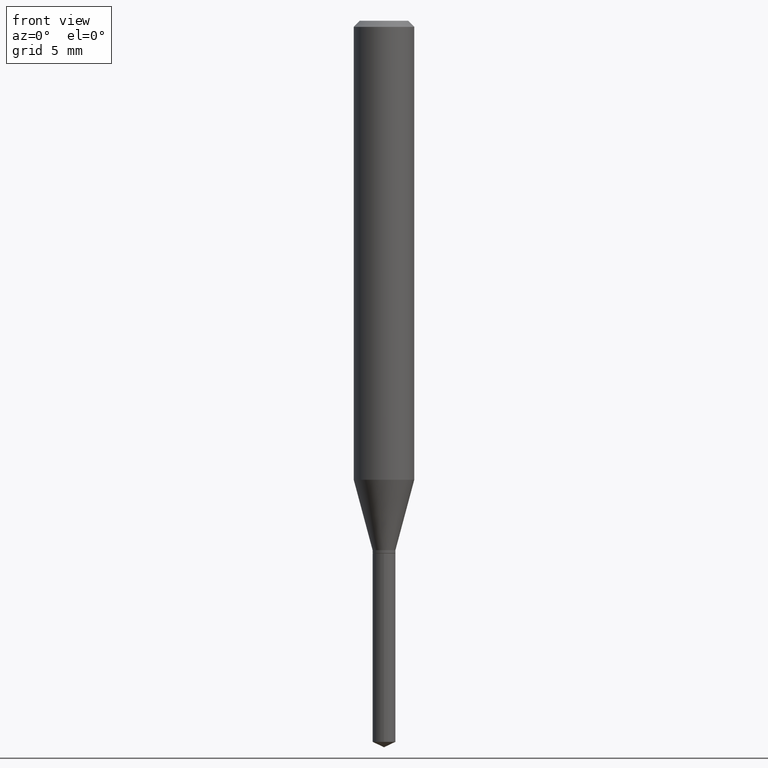
[diagram: clean part render]
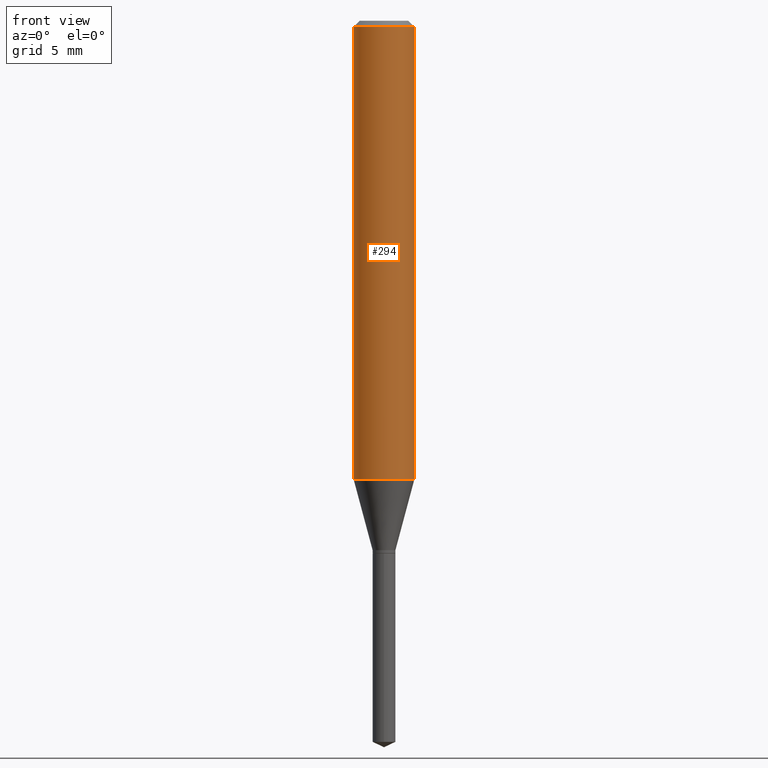
[diagram: same view with one face highlighted and labeled with its STEP entity id]
A machine part, front view. The second image highlights one B-rep face of the part: STEP entity #294.
In plain terms, the highlighted cylindrical surface (edge-blend (fillet) strip) has radius 1.5875 mm, axis along (-0, 0, 1).
Its self-contained STEP definition (entity closure, byte-faithful):
#22 = DIRECTION ( 'NONE',  ( -2.445468806185136597E-29, 3.491481338843145583E-15, 1.000000000000000000 ) ) ;
#25 = CARTESIAN_POINT ( 'NONE',  ( -0.06250000000000012490, -2.864868739687227081E-15, -0.9477232235855707065 ) ) ;
#33 = CARTESIAN_POINT ( 'NONE',  ( -0.06250000000000001388, -1.232211523286351422E-15, -0.01250000000000008916 ) ) ;
#54 = CYLINDRICAL_SURFACE ( 'NONE', #135, 0.06250000000000006939 ) ;
#62 = CARTESIAN_POINT ( 'NONE',  ( 0.000000000000000000, 0.000000000000000000, 0.000000000000000000 ) ) ;
#70 = DIRECTION ( 'NONE',  ( 1.000000000000000000, -6.982962677686265922E-15, 0.000000000000000000 ) ) ;
#71 = VECTOR ( 'NONE', #118, 39.37007874015748143 ) ;
#108 = VERTEX_POINT ( 'NONE', #244 ) ;
#118 = DIRECTION ( 'NONE',  ( -2.445468806185136877E-29, 3.491481338843145188E-15, 1.000000000000000000 ) ) ;
#121 = EDGE_CURVE ( 'NONE', #413, #339, #126, .T. ) ;
#126 = CIRCLE ( 'NONE', #385, 0.06250000000000012490 ) ;
#135 = AXIS2_PLACEMENT_3D ( 'NONE', #62, #22, #371 ) ;
#168 = EDGE_CURVE ( 'NONE', #339, #108, #315, .T. ) ;
#174 = DIRECTION ( 'NONE',  ( 1.000000000000000000, -6.982962677686264344E-15, 0.000000000000000000 ) ) ;
#188 = VECTOR ( 'NONE', #397, 39.37007874015748143 ) ;
#195 = EDGE_CURVE ( 'NONE', #413, #417, #323, .T. ) ;
#196 = ORIENTED_EDGE ( 'NONE', *, *, #445, .F. ) ;
#210 = FACE_OUTER_BOUND ( 'NONE', #247, .T. ) ;
#212 = CARTESIAN_POINT ( 'NONE',  ( 0.06250000000000012490, -3.745393116892682550E-15, -0.9477232235855707065 ) ) ;
#228 = ORIENTED_EDGE ( 'NONE', *, *, #121, .T. ) ;
#244 = CARTESIAN_POINT ( 'NONE',  ( 0.06250000000000001388, -4.800786840909313294E-16, -0.01250000000000008916 ) ) ;
#247 = EDGE_LOOP ( 'NONE', ( #253, #228, #438, #196 ) ) ;
#253 = ORIENTED_EDGE ( 'NONE', *, *, #195, .F. ) ;
#294 = ADVANCED_FACE ( 'NONE', ( #210 ), #54, .T. ) ;
#301 = CIRCLE ( 'NONE', #415, 0.06250000000000001388 ) ;
#315 = LINE ( 'NONE', #352, #188 ) ;
#323 = LINE ( 'NONE', #464, #71 ) ;
#339 = VERTEX_POINT ( 'NONE', #212 ) ;
#352 = CARTESIAN_POINT ( 'NONE',  ( 0.06250000000000006939, -4.364351673553921624E-16, 3.047610484872463374E-30 ) ) ;
#371 = DIRECTION ( 'NONE',  ( 1.000000000000000000, -6.982962677686266711E-15, 4.876176775795935793E-29 ) ) ;
#385 = AXIS2_PLACEMENT_3D ( 'NONE', #427, #431, #174 ) ;
#397 = DIRECTION ( 'NONE',  ( -2.445468806185136877E-29, 3.491481338843145188E-15, 1.000000000000000000 ) ) ;
#413 = VERTEX_POINT ( 'NONE', #25 ) ;
#415 = AXIS2_PLACEMENT_3D ( 'NONE', #450, #444, #70 ) ;
#417 = VERTEX_POINT ( 'NONE', #33 ) ;
#427 = CARTESIAN_POINT ( 'NONE',  ( 2.317627580175734983E-29, -3.308957949537290487E-15, -0.9477232235855707065 ) ) ;
#431 = DIRECTION ( 'NONE',  ( -2.445468806185136597E-29, 3.491481338843145583E-15, 1.000000000000000000 ) ) ;
#438 = ORIENTED_EDGE ( 'NONE', *, *, #168, .T. ) ;
#444 = DIRECTION ( 'NONE',  ( -2.445468806185136597E-29, 3.491481338843145583E-15, 1.000000000000000000 ) ) ;
#445 = EDGE_CURVE ( 'NONE', #417, #108, #301, .T. ) ;
#450 = CARTESIAN_POINT ( 'NONE',  ( 3.056836007731442729E-31, -4.364351673553962300E-17, -0.01250000000000008916 ) ) ;
#464 = CARTESIAN_POINT ( 'NONE',  ( -0.06250000000000006939, 4.440892098500631092E-16, -3.074334431409319267E-30 ) ) ;